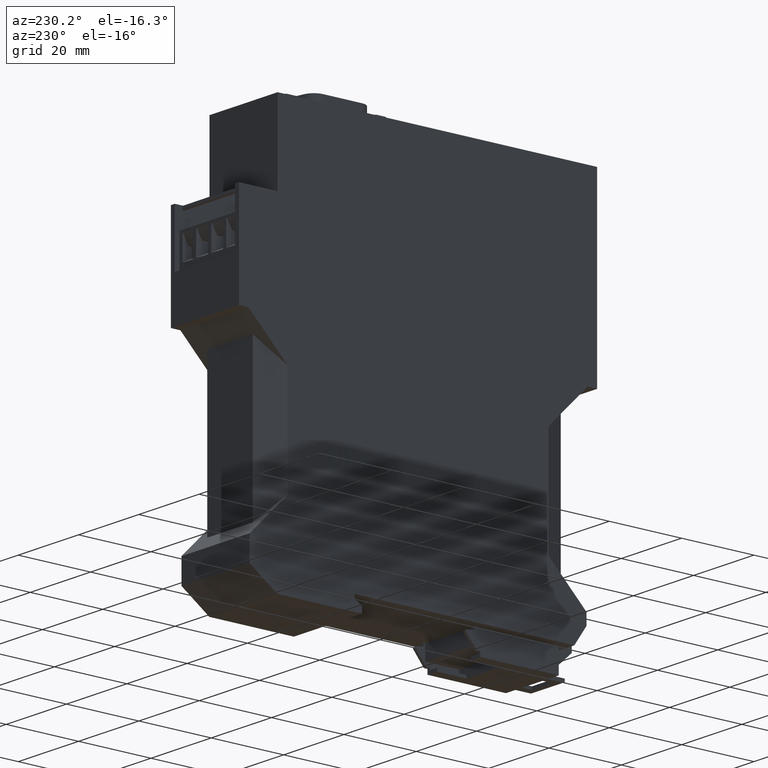
[diagram: clean part render]
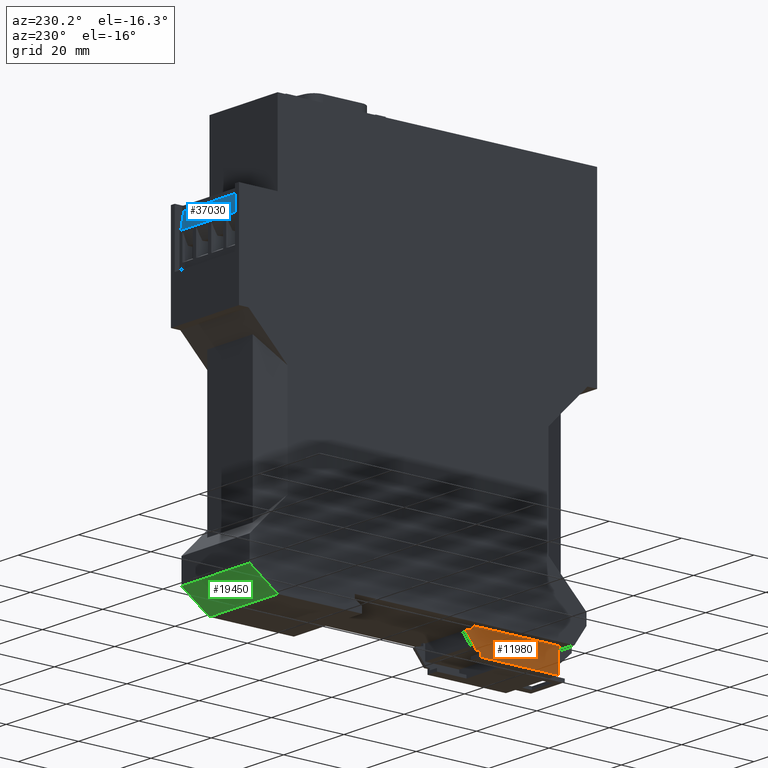
[diagram: same view with three faces highlighted in distinct colors, each labeled with its STEP entity id]
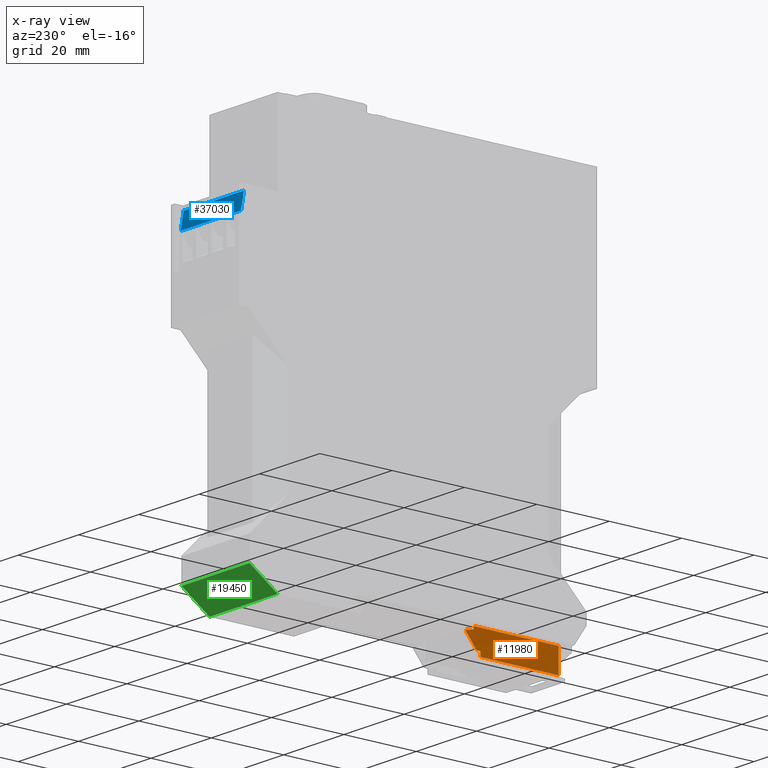
[diagram: x-ray of the same camera — body ghosted, the three highlighted faces saturated]
A machine part, auxiliary view with three faces highlighted in distinct colors.
The next image is the same camera in x-ray (body ghosted, the three faces saturated) — at least one of them is partly hidden behind the body in this view.
Their STEP definitions:

[orange] entity #11980 — the highlighted planar face has unit normal (-1, 0, 0).
#5820=CARTESIAN_POINT('',(-32.8000000000018,-1.49999999999912,
2.54999999999998));
#5830=VERTEX_POINT('',#5820);
#5880=CARTESIAN_POINT('',(-18.5961179743032,16.0181211650292,
2.54999999999998));
#5890=DIRECTION('',(-0.62980195842122,-0.776755748719503,0.));
#5900=VECTOR('',#5890,1.);
#5910=LINE('',#5880,#5900);
#5920=CARTESIAN_POINT('',(-35.8000000000019,-5.19999999999913,
2.54999999999998));
#5930=VERTEX_POINT('',#5920);
#5940=EDGE_CURVE('',#5830,#5930,#5910,.T.);
#8140=CARTESIAN_POINT('',(-32.8000000000018,-1.19999999999913,
2.54999999999998));
#8150=VERTEX_POINT('',#8140);
#8200=CARTESIAN_POINT('',(-32.8000000000018,15.1316941286013,
2.54999999999998));
#8210=DIRECTION('',(0.,-1.,0.));
#8220=VECTOR('',#8210,1.);
#8230=LINE('',#8200,#8220);
#8240=EDGE_CURVE('',#8150,#5830,#8230,.T.);
#9370=CARTESIAN_POINT('',(-58.5000000000017,4.72510919280467E-13,
2.54999999999998));
#9380=VERTEX_POINT('',#9370);
#9620=CARTESIAN_POINT('',(-58.5000000000017,-6.49999999999915,
2.54999999999998));
#9630=VERTEX_POINT('',#9620);
#9660=CARTESIAN_POINT('',(-58.5000000000018,15.1316941286013,
2.54999999999998));
#9670=DIRECTION('',(0.,1.,0.));
#9680=VECTOR('',#9670,1.);
#9690=LINE('',#9660,#9680);
#9700=EDGE_CURVE('',#9630,#9380,#9690,.T.);
#10190=CARTESIAN_POINT('',(-17.5028579627089,-5.19999999999913,
2.54999999999998));
#10200=DIRECTION('',(-1.,0.,0.));
#10210=VECTOR('',#10200,1.);
#10220=LINE('',#10190,#10210);
#10230=CARTESIAN_POINT('',(-36.8000000000018,-5.19999999999913,
2.54999999999998));
#10240=VERTEX_POINT('',#10230);
#10250=EDGE_CURVE('',#5930,#10240,#10220,.T.);
#11310=CARTESIAN_POINT('',(-35.0000000000018,1.35003119794419E-13,
2.54999999999998));
#11320=VERTEX_POINT('',#11310);
#11350=CARTESIAN_POINT('',(-35.0000000000018,15.1316941286013,
2.54999999999998));
#11360=DIRECTION('',(0.,-1.,0.));
#11370=VECTOR('',#11360,1.);
#11380=LINE('',#11350,#11370);
#11390=CARTESIAN_POINT('',(-35.0000000000018,-0.699999999999125,
2.54999999999998));
#11400=VERTEX_POINT('',#11390);
#11410=EDGE_CURVE('',#11320,#11400,#11380,.T.);
#11600=CARTESIAN_POINT('',(-17.5028579627089,15.1316941286013,
2.54999999999998));
#11610=DIRECTION('',(0.,0.,-1.));
#11620=DIRECTION('',(-1.,0.,0.));
#11630=AXIS2_PLACEMENT_3D('',#11600,#11610,#11620);
#11640=PLANE('',#11630);
#11650=ORIENTED_EDGE('',*,*,#10250,.T.);
#11660=ORIENTED_EDGE('',*,*,#5940,.T.);
#11670=ORIENTED_EDGE('',*,*,#8240,.T.);
#11680=CARTESIAN_POINT('',(-21.7836338076567,-3.70371958916854,
2.54999999999998));
#11690=DIRECTION('',(0.975132855791458,-0.221621103588974,-0.));
#11700=VECTOR('',#11690,1.);
#11710=LINE('',#11680,#11700);
#11720=EDGE_CURVE('',#11400,#8150,#11710,.T.);
#11730=ORIENTED_EDGE('',*,*,#11720,.T.);
#11740=ORIENTED_EDGE('',*,*,#11410,.T.);
#11750=CARTESIAN_POINT('',(24.,-7.14095449438901E-13,2.54999999999998));
#11760=DIRECTION('',(-1.,1.44E-14,0.));
#11770=VECTOR('',#11760,1.);
#11780=LINE('',#11750,#11770);
#11790=EDGE_CURVE('',#11320,#9380,#11780,.T.);
#11800=ORIENTED_EDGE('',*,*,#11790,.F.);
#11810=ORIENTED_EDGE('',*,*,#9700,.T.);
#11820=CARTESIAN_POINT('',(-17.5000000000017,-6.50000000000032,
2.54999999999998));
#11830=DIRECTION('',(1.,-2.8421709430404E-14,-0.));
#11840=VECTOR('',#11830,1.);
#11850=LINE('',#11820,#11840);
#11860=CARTESIAN_POINT('',(-36.8000000000018,-6.49999999999977,
2.54999999999998));
#11870=VERTEX_POINT('',#11860);
#11880=EDGE_CURVE('',#9630,#11870,#11850,.T.);
#11890=ORIENTED_EDGE('',*,*,#11880,.F.);
#11900=CARTESIAN_POINT('',(-36.8000000000018,-7.89999999999914,
2.54999999999998));
#11910=DIRECTION('',(0.,1.,0.));
#11920=VECTOR('',#11910,1.);
#11930=LINE('',#11900,#11920);
#11940=EDGE_CURVE('',#11870,#10240,#11930,.T.);
#11950=ORIENTED_EDGE('',*,*,#11940,.F.);
#11960=EDGE_LOOP('',(#11950,#11890,#11810,#11800,#11740,#11730,#11670,
#11660,#11650));
#11970=FACE_OUTER_BOUND('',#11960,.T.);
#11980=ADVANCED_FACE('F59',(#11970),#11640,.T.);

[blue] entity #37030 — the highlighted planar face has unit normal (0, 0.9848, 0.1736).
#34510=CARTESIAN_POINT('',(29.5387195026883,83.9860003350739,
21.3000000001629));
#34520=VERTEX_POINT('',#34510);
#34550=CARTESIAN_POINT('',(40.1158698265483,24.,21.3000000001629));
#34560=DIRECTION('',(-0.173648177666923,0.984807753012209,0.));
#34570=VECTOR('',#34560,1.);
#34580=LINE('',#34550,#34570);
#34590=CARTESIAN_POINT('',(30.3500000000092,79.3850000000071,
21.3000000001629));
#34600=VERTEX_POINT('',#34590);
#34610=EDGE_CURVE('',#34600,#34520,#34580,.T.);
#34950=CARTESIAN_POINT('',(40.1158698265483,24.,1.30000000018787));
#34960=DIRECTION('',(0.173648177666923,-0.984807753012209,
3.1431801605919E-13));
#34970=VECTOR('',#34960,1.);
#34980=LINE('',#34950,#34970);
#34990=CARTESIAN_POINT('',(29.5387195026883,83.9860003350739,
1.30000000016873));
#35000=VERTEX_POINT('',#34990);
#35010=CARTESIAN_POINT('',(30.3500000000092,79.3850000000071,
1.30000000017019));
#35020=VERTEX_POINT('',#35010);
#35030=EDGE_CURVE('',#35000,#35020,#34980,.T.);
#36680=CARTESIAN_POINT('',(29.5387195026883,83.9860003350738,
18.800000000168));
#36690=DIRECTION('',(-1.13152790739016E-17,6.41721364957217E-17,1.));
#36700=VECTOR('',#36690,1.);
#36710=LINE('',#36680,#36700);
#36720=EDGE_CURVE('',#35000,#34520,#36710,.T.);
#36870=CARTESIAN_POINT('',(29.6209356073298,83.5197296355405,
-3.09999999983205));
#36880=DIRECTION('',(0.984807753012209,0.173648177666923,0.));
#36890=DIRECTION('',(0.173648177666923,-0.984807753012209,-0.));
#36900=AXIS2_PLACEMENT_3D('',#36870,#36880,#36890);
#36910=PLANE('',#36900);
#36920=CARTESIAN_POINT('',(30.3500000000092,79.3850000000071,
18.800000000168));
#36930=DIRECTION('',(0.,0.,1.));
#36940=VECTOR('',#36930,1.);
#36950=LINE('',#36920,#36940);
#36960=EDGE_CURVE('',#35020,#34600,#36950,.T.);
#36970=ORIENTED_EDGE('',*,*,#36960,.F.);
#36980=ORIENTED_EDGE('',*,*,#34610,.F.);
#36990=ORIENTED_EDGE('',*,*,#36720,.T.);
#37000=ORIENTED_EDGE('',*,*,#35030,.F.);
#37010=EDGE_LOOP('',(#37000,#36990,#36980,#36970));
#37020=FACE_OUTER_BOUND('',#37010,.T.);
#37030=ADVANCED_FACE('',(#37020),#36910,.T.);

[green] entity #19450 — the highlighted planar face has unit normal (0, 0.5736, -0.8192).
#440=CARTESIAN_POINT('',(21.3380007636733,-4.00000000000004,0.));
#450=VERTEX_POINT('',#440);
#480=CARTESIAN_POINT('',(24.,-2.13604806801552,0.));
#490=DIRECTION('',(0.819152044288986,0.573576436351054,0.));
#500=VECTOR('',#490,1.);
#510=LINE('',#480,#500);
#520=CARTESIAN_POINT('',(29.0500000000947,1.40000000001001,0.));
#530=VERTEX_POINT('',#520);
#540=EDGE_CURVE('',#450,#530,#510,.T.);
#3230=CARTESIAN_POINT('',(29.0500000000947,1.40000000001705,22.6));
#3240=VERTEX_POINT('',#3230);
#3270=CARTESIAN_POINT('',(24.,-2.13604806800835,22.6));
#3280=DIRECTION('',(-0.819152044288986,-0.573576436351054,0.));
#3290=VECTOR('',#3280,1.);
#3300=LINE('',#3270,#3290);
#3310=CARTESIAN_POINT('',(21.338000763663,-4.00000000000013,22.6));
#3320=VERTEX_POINT('',#3310);
#3330=EDGE_CURVE('',#3240,#3320,#3300,.T.);
#19110=CARTESIAN_POINT('',(29.0500000000947,1.40000000000988,0.));
#19120=DIRECTION('',(0.,6.34347409244213E-13,1.));
#19130=VECTOR('',#19120,1.);
#19140=LINE('',#19110,#19130);
#19150=EDGE_CURVE('',#530,#3240,#19140,.T.);
#19290=CARTESIAN_POINT('',(-6.60207415350839,-23.5638510751622,
-11.2999999999453));
#19300=DIRECTION('',(0.573576436351054,-0.819152044288986,
5.19626977071819E-13));
#19310=DIRECTION('',(0.819152044288986,0.573576436351054,
7.42104231554538E-13));
#19320=AXIS2_PLACEMENT_3D('',#19290,#19300,#19310);
#19330=PLANE('',#19320);
#19340=ORIENTED_EDGE('',*,*,#540,.T.);
#19350=CARTESIAN_POINT('',(21.3380007636733,-4.00000000000004,0.));
#19360=DIRECTION('',(-9.11449562199973E-13,-3.85644490616134E-15,1.));
#19370=VECTOR('',#19360,1.);
#19380=LINE('',#19350,#19370);
#19390=EDGE_CURVE('',#450,#3320,#19380,.T.);
#19400=ORIENTED_EDGE('',*,*,#19390,.F.);
#19410=ORIENTED_EDGE('',*,*,#3330,.T.);
#19420=ORIENTED_EDGE('',*,*,#19150,.T.);
#19430=EDGE_LOOP('',(#19420,#19410,#19400,#19340));
#19440=FACE_OUTER_BOUND('',#19430,.T.);
#19450=ADVANCED_FACE('',(#19440),#19330,.T.);